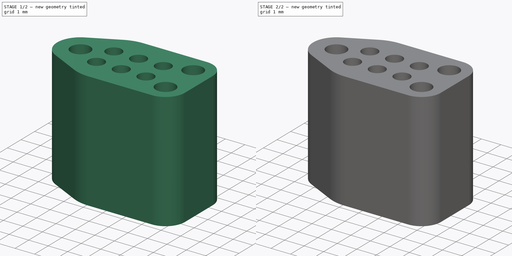
[diagram: build sequence overview — one tinted view per stage of 2, left to right]
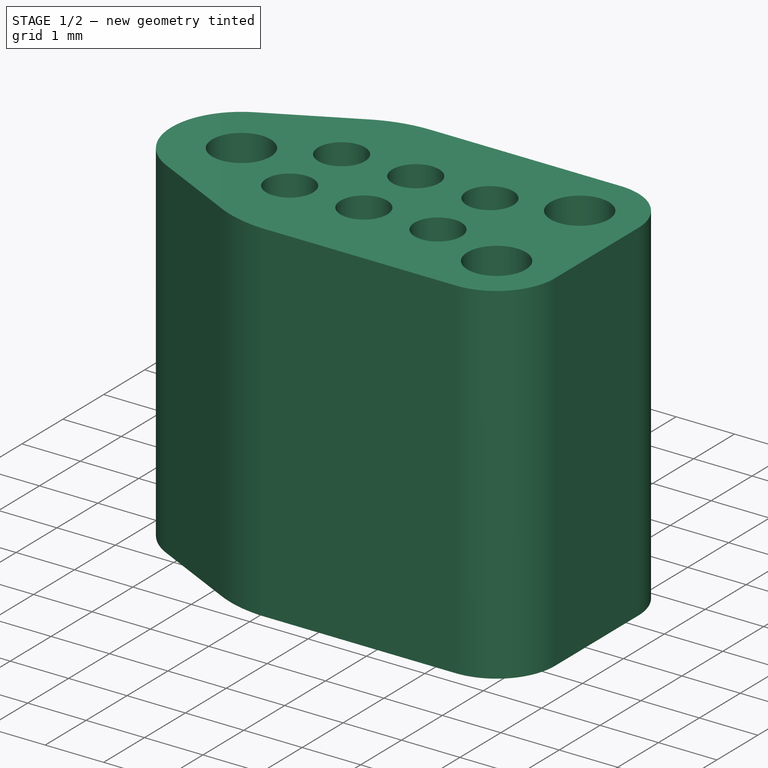
[diagram: stage 1 of 2 — iso view after this stage's code; geometry added in this stage tinted green]
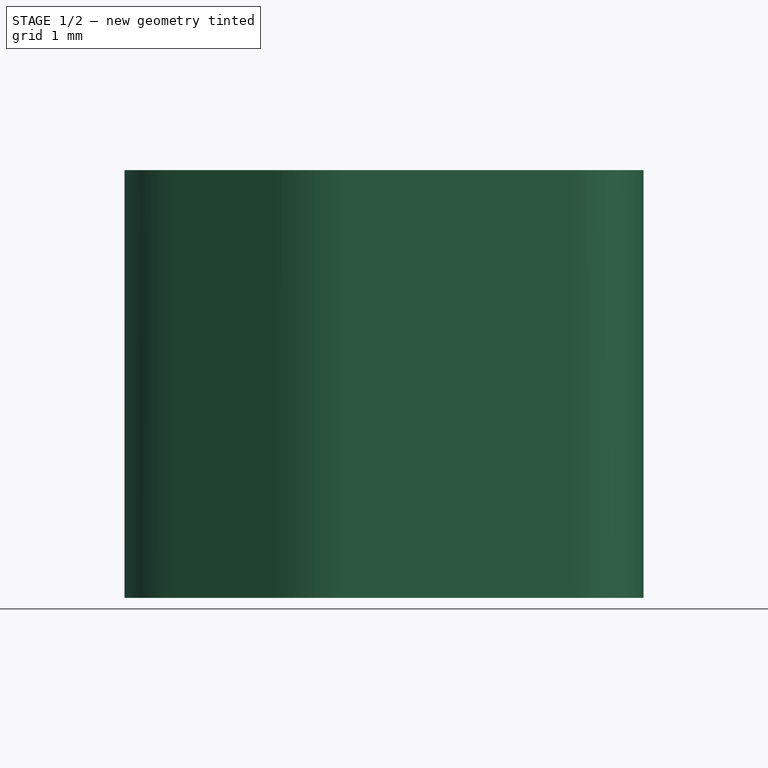
[diagram: stage 1 of 2 — front view after this stage's code; geometry added in this stage tinted green]
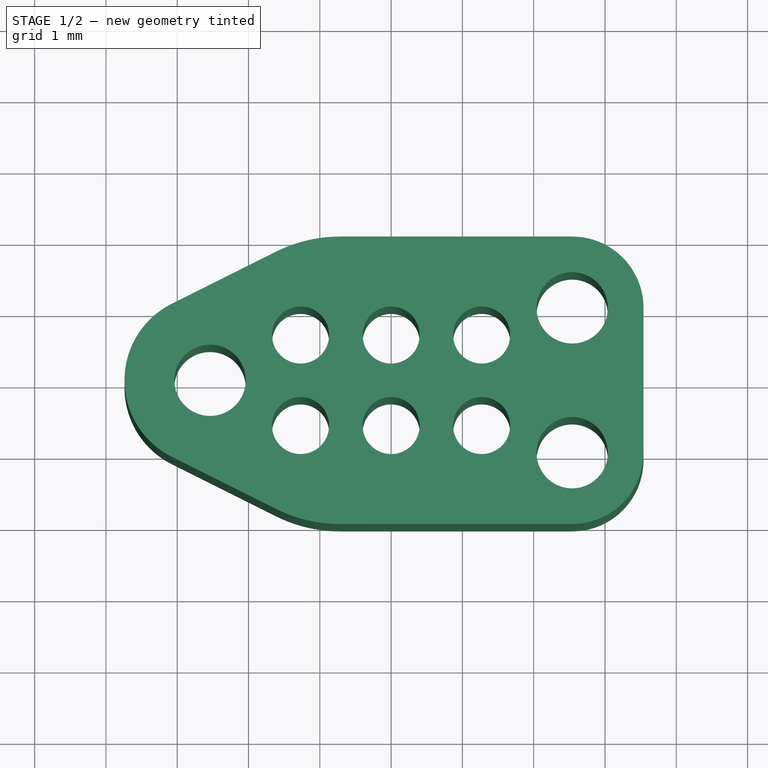
[diagram: stage 1 of 2 — top view after this stage's code; geometry added in this stage tinted green]
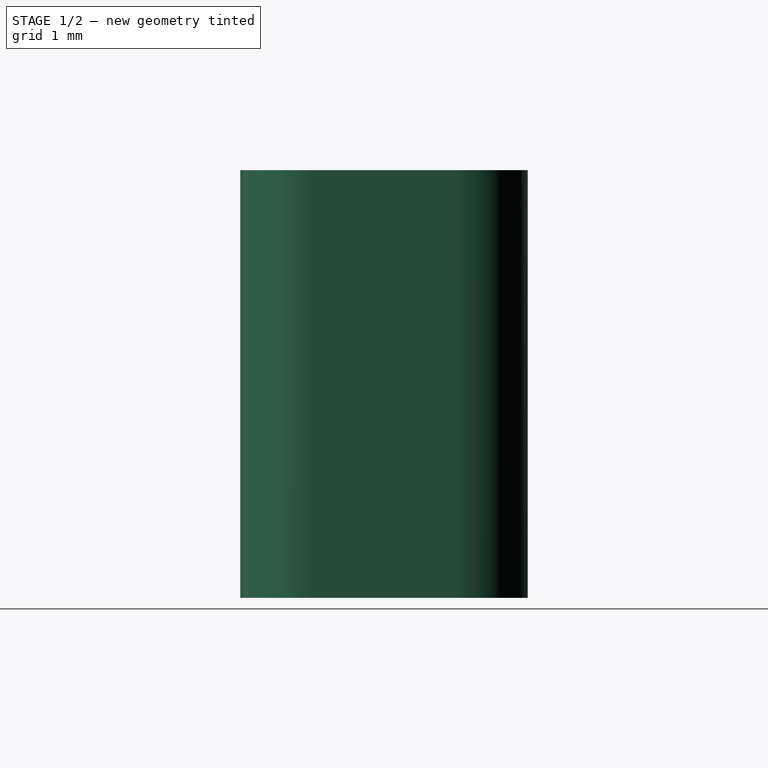
[diagram: stage 1 of 2 — right view after this stage's code; geometry added in this stage tinted green]
FCSTD DOCUMENT  (FreeCAD 0.21R33771 (Git))
Label: tagconnect
License: All rights reserved
LicenseURL: http://en.wikipedia.org/wiki/All_rights_reserved
objects: Sketcher::SketchObject×2, PartDesign::Pad×2, PartDesign::Body×2
note: 8 computed .brp shape members not serialized (recipe doc carries the construction recipe); baked Part::Feature solids carry a one-line shape summary decoded from their .brp

FEATURE [PartDesign::Body] Body
  Group = -> [Sketch,Pad]
  Origin = -> Origin
  Tip = -> Pad
FEATURE [Sketcher::SketchObject] Sketch001
  FullyConstrained = true
  MapMode = 5
  Support = -> [XY_Plane001]
  sketch-geometry (30):
    g0: LineSegment StartX=-1.27 StartY=0.635 StartZ=0 EndX=0 EndY=0.635 EndZ=0
    g1: LineSegment StartX=0 StartY=0.635 StartZ=0 EndX=1.27 EndY=0.635 EndZ=0
    g2: LineSegment StartX=1.27 StartY=0.635 StartZ=0 EndX=1.27 EndY=-0.635 EndZ=0
    g3: LineSegment StartX=1.27 StartY=-0.635 StartZ=0 EndX=0 EndY=-0.635 EndZ=0
    g4: LineSegment StartX=1e-16 StartY=-0.635 StartZ=0 EndX=-1.27 EndY=-0.635 EndZ=0
    g5: LineSegment StartX=-1.27 StartY=-0.635 StartZ=0 EndX=-1.27 EndY=0.635 EndZ=0
    g6: Circle CenterX=-1.27 CenterY=-0.635 CenterZ=0 NormalX=0 NormalY=0 NormalZ=1 AngleXU=0 Radius=0.4
    g7: Circle CenterX=-1.27 CenterY=0.635 CenterZ=0 NormalX=0 NormalY=0 NormalZ=1 AngleXU=0 Radius=0.4
    g8: Circle CenterX=0 CenterY=0.635 CenterZ=0 NormalX=0 NormalY=0 NormalZ=1 AngleXU=0 Radius=0.4
    g9: Circle CenterX=1.27 CenterY=0.635 CenterZ=0 NormalX=0 NormalY=0 NormalZ=1 AngleXU=0 Radius=0.4
    g10: Circle CenterX=1.27 CenterY=-0.635 CenterZ=0 NormalX=0 NormalY=0 NormalZ=1 AngleXU=0 Radius=0.4
    g11: Circle CenterX=1e-16 CenterY=-0.635 CenterZ=0 NormalX=0 NormalY=0 NormalZ=1 AngleXU=0 Radius=0.4
    g12: Circle CenterX=-2.54 CenterY=0 CenterZ=0 NormalX=0 NormalY=0 NormalZ=1 AngleXU=0 Radius=0.5
    g13: Circle CenterX=2.54 CenterY=1.016 CenterZ=0 NormalX=0 NormalY=0 NormalZ=1 AngleXU=0 Radius=0.5
    g14: Circle CenterX=2.54 CenterY=-1.016 CenterZ=0 NormalX=0 NormalY=0 NormalZ=1 AngleXU=0 Radius=0.5
    g15: LineSegment StartX=-2.54 StartY=0 StartZ=0 EndX=-1.27 EndY=0 EndZ=0
    g16: LineSegment StartX=2.54 StartY=1.016 StartZ=0 EndX=2.54 EndY=-1.016 EndZ=0
    g17: LineSegment StartX=1.27 StartY=0 StartZ=0 EndX=2.54 EndY=0 EndZ=0
    g18: ArcOfCircle CenterX=-2.54 CenterY=0 CenterZ=0 NormalX=0 NormalY=0 NormalZ=1 AngleXU=0 Radius=1.2 StartAngle=2.03444 EndAngle=4.24874
    g19: ArcOfCircle CenterX=2.54 CenterY=1.016 CenterZ=0 NormalX=0 NormalY=0 NormalZ=1 AngleXU=0 Radius=1 StartAngle=2e-16 EndAngle=1.5708
    g20: ArcOfCircle CenterX=2.54 CenterY=-1.016 CenterZ=0 NormalX=0 NormalY=0 NormalZ=1 AngleXU=0 Radius=1 StartAngle=4.71239 EndAngle=6.28319
    g21: ArcOfCircle CenterX=-0.719146 CenterY=-0.016 CenterZ=0 NormalX=0 NormalY=0 NormalZ=1 AngleXU=0 Radius=2 StartAngle=4.24874 EndAngle=4.71238
    g22: ArcOfCircle CenterX=-0.719146 CenterY=0.016 CenterZ=0 NormalX=0 NormalY=0 NormalZ=1 AngleXU=0 Radius=2 StartAngle=1.5708 EndAngle=2.03444
    g23: LineSegment StartX=-3.07666 StartY=1.07331 StartZ=0 EndX=-1.61357 EndY=1.80485 EndZ=0
    g24: LineSegment StartX=-0.719146 StartY=2.016 StartZ=0 EndX=2.54 EndY=2.016 EndZ=0
    g25: LineSegment StartX=3.54 StartY=1.016 StartZ=0 EndX=3.54 EndY=-1.016 EndZ=0
    g26: LineSegment StartX=2.54 StartY=-2.016 StartZ=0 EndX=-0.71916 EndY=-2.016 EndZ=0
    g27: LineSegment StartX=-3.07666 StartY=-1.07331 StartZ=0 EndX=-1.61357 EndY=-1.80485 EndZ=0
    g28: LineSegment StartX=-0.719146 StartY=0.016 StartZ=0 EndX=-0.719146 EndY=-0.016 EndZ=0
    g29: Circle CenterX=-1.27 CenterY=0.635 CenterZ=0 NormalX=0 NormalY=0 NormalZ=1 AngleXU=0 Radius=1.2
  constraints (71):
    c: Horizontal(g0)
    c: Coincident(g0,g1)
    c: Horizontal(g1)
    c: Coincident(g1,g2)
    c: Vertical(g2)
    c: Coincident(g2,g3)
    c: Horizontal(g3)
    c: Coincident(g3,g4)
    c: Horizontal(g4)
    c: Coincident(g4,g5)
    c: Coincident(g5,g0)
    c: Equal(g0,g1)
    c: Equal(g1,g2)
    c: Equal(g2,g3)
    c: Equal(g3,g4)
    c: DistanceY(g5,g5) = 1.27
    c: Coincident(g6,g4)
    c: Radius(g6) = 0.4
    c: Coincident(g7,g0)
    c: Coincident(g8,g0)
    c: Coincident(g10,g2)
    c: Coincident(g1,g9)
    c: Coincident(g11,g3)
    c: Equal(g6,g7)
    c: Equal(g7,g8)
    c: Equal(g8,g9)
    c: Equal(g9,g10)
    c: Equal(g10,g11)
    c: Equal(g13,g14)
    c: Coincident(g15,g12)
    c: Horizontal(g15)
    c: Symmetric(g7,g6,g15)
    c: Coincident(g16,g13)
    c: Coincident(g16,g14)
    c: Vertical(g16)
    c: Horizontal(g17)
    c: Symmetric(g13,g14,g17)
    c: Symmetric(g9,g10,g17)
    c: Radius(g12) = 0.5
    c: Equal(g5,g15)
    c: Equal(g15,g17)
    c: DistanceY(g16,g16) = 2.032
    c: DistanceX(g12,g13) = 5.08
    c: Symmetric(g6,g9,g-1)
    c: Coincident(g18,g12)
    c: Coincident(g19,g13)
    c: Coincident(g20,g14)
    c: Equal(g19,g20)
    c: Equal(g21,g22)
    c: Coincident(g26,g21)
    c: Horizontal(g26)
    c: Horizontal(g24)
    c: Coincident(g28,g22)
    c: Coincident(g28,g21)
    c: Symmetric(g21,g22,g15)
    c: Tangent(g22,g24) = 1.5708
    c: Tangent(g19,g24) = 1.5708
    c: Tangent(g19,g25) = 1.5708
    c: Tangent(g20,g25) = 1.5708
    c: Tangent(g21,g27) = -1.5708
    c: Tangent(g18,g27) = -1.5708
    c: Tangent(g18,g23) = 1.5708
    c: Tangent(g22,g23) = 1.5708
    c: Tangent(g20,g26) = 1.5708
    c: Radius(g18) = 1.2
    c: Radius(g22) = 2
    c: Equal(g12,g13)
    c: Coincident(g29,g7)
    c: Equal(g29,g18)
    c: Tangent(g29,g23)
    c: Radius(g19) = 1
FEATURE [PartDesign::Pad] Pad001
  Direction = (0,0,1)
  Length = 6
  Length2 = 10
  Profile = -> Sketch001
  ReferenceAxis = -> Sketch001 [N_Axis]
  Type = 0
FEATURE [PartDesign::Body] Body001
  Group = -> [Sketch001,Pad001]
  Origin = -> Origin001
  Tip = -> Pad001
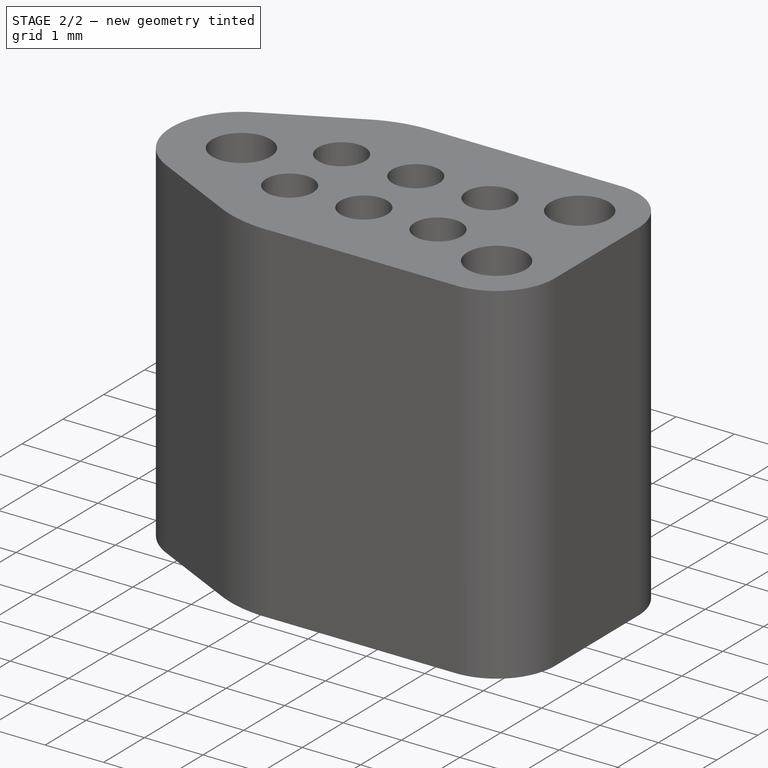
[diagram: stage 2 of 2 — iso view after this stage's code; geometry added in this stage tinted green]
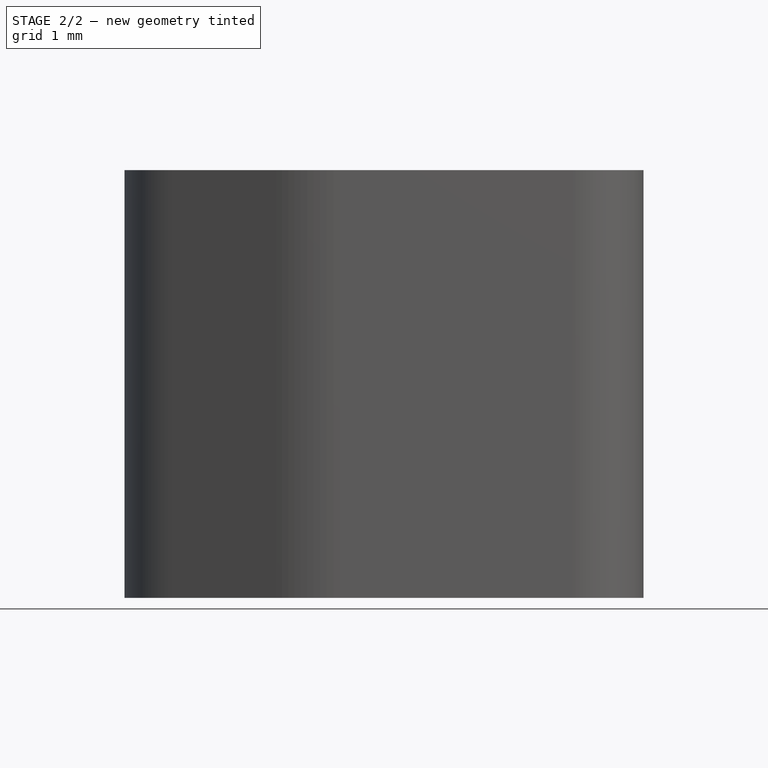
[diagram: stage 2 of 2 — front view after this stage's code; geometry added in this stage tinted green]
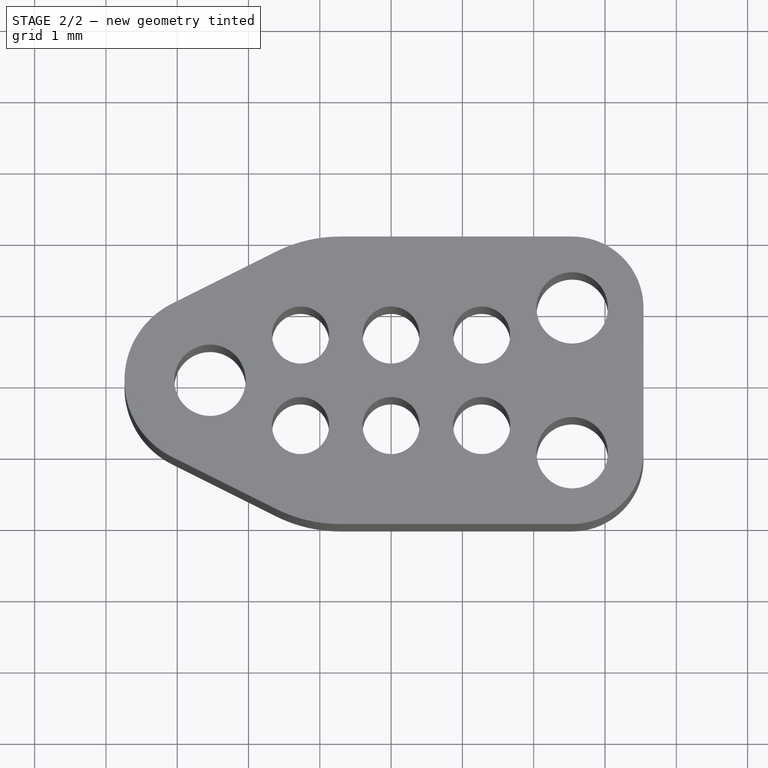
[diagram: stage 2 of 2 — top view after this stage's code; geometry added in this stage tinted green]
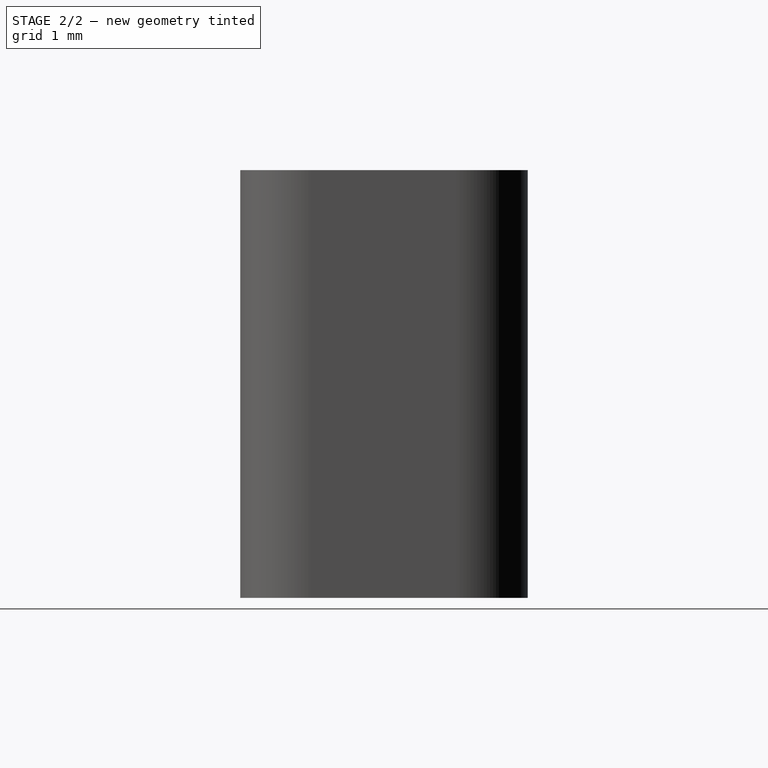
[diagram: stage 2 of 2 — right view after this stage's code; geometry added in this stage tinted green]
FEATURE [Sketcher::SketchObject] Sketch
  FullyConstrained = true
  MapMode = 5
  Support = -> [XY_Plane]
  sketch-geometry (30):
    g0: LineSegment StartX=-1.27 StartY=0.635 StartZ=0 EndX=0 EndY=0.635 EndZ=0
    g1: LineSegment StartX=0 StartY=0.635 StartZ=0 EndX=1.27 EndY=0.635 EndZ=0
    g2: LineSegment StartX=1.27 StartY=0.635 StartZ=0 EndX=1.27 EndY=-0.635 EndZ=0
    g3: LineSegment StartX=1.27 StartY=-0.635 StartZ=0 EndX=0 EndY=-0.635 EndZ=0
    g4: LineSegment StartX=0 StartY=-0.635 StartZ=0 EndX=-1.27 EndY=-0.635 EndZ=0
    g5: LineSegment StartX=-1.27 StartY=-0.635 StartZ=0 EndX=-1.27 EndY=0.635 EndZ=0
    g6: Circle CenterX=-1.27 CenterY=-0.635 CenterZ=0 NormalX=0 NormalY=0 NormalZ=1 AngleXU=0 Radius=0.4
    g7: Circle CenterX=-1.27 CenterY=0.635 CenterZ=0 NormalX=0 NormalY=0 NormalZ=1 AngleXU=0 Radius=0.4
    g8: Circle CenterX=0 CenterY=0.635 CenterZ=0 NormalX=0 NormalY=0 NormalZ=1 AngleXU=0 Radius=0.4
    g9: Circle CenterX=1.27 CenterY=0.635 CenterZ=0 NormalX=0 NormalY=0 NormalZ=1 AngleXU=0 Radius=0.4
    g10: Circle CenterX=1.27 CenterY=-0.635 CenterZ=0 NormalX=0 NormalY=0 NormalZ=1 AngleXU=0 Radius=0.4
    g11: Circle CenterX=0 CenterY=-0.635 CenterZ=0 NormalX=0 NormalY=0 NormalZ=1 AngleXU=0 Radius=0.4
    g12: Circle CenterX=-2.54 CenterY=0 CenterZ=0 NormalX=0 NormalY=0 NormalZ=1 AngleXU=0 Radius=0.5
    g13: Circle CenterX=2.54 CenterY=1.016 CenterZ=0 NormalX=0 NormalY=0 NormalZ=1 AngleXU=0 Radius=0.5
    g14: Circle CenterX=2.54 CenterY=-1.016 CenterZ=0 NormalX=0 NormalY=0 NormalZ=1 AngleXU=0 Radius=0.5
    g15: LineSegment StartX=-2.54 StartY=0 StartZ=0 EndX=-1.27 EndY=0 EndZ=0
    g16: LineSegment StartX=2.54 StartY=1.016 StartZ=0 EndX=2.54 EndY=-1.016 EndZ=0
    g17: LineSegment StartX=1.27 StartY=0 StartZ=0 EndX=2.54 EndY=0 EndZ=0
    g18: ArcOfCircle CenterX=-2.54 CenterY=0 CenterZ=0 NormalX=0 NormalY=0 NormalZ=1 AngleXU=0 Radius=1.1 StartAngle=2.03444 EndAngle=4.24874
    g19: ArcOfCircle CenterX=2.54 CenterY=1.016 CenterZ=0 NormalX=0 NormalY=0 NormalZ=1 AngleXU=0 Radius=0.884 StartAngle=0 EndAngle=1.5708
    g20: ArcOfCircle CenterX=2.54 CenterY=-1.016 CenterZ=0 NormalX=0 NormalY=0 NormalZ=1 AngleXU=0 Radius=0.884 StartAngle=4.71239 EndAngle=6.28319
    g21: ArcOfCircle CenterX=-0.727539 CenterY=0.1 CenterZ=0 NormalX=0 NormalY=0 NormalZ=1 AngleXU=0 Radius=2 StartAngle=4.24874 EndAngle=4.71238
    g22: ArcOfCircle CenterX=-0.727539 CenterY=-0.1 CenterZ=0 NormalX=0 NormalY=0 NormalZ=1 AngleXU=0 Radius=2 StartAngle=1.5708 EndAngle=2.03444
    g23: LineSegment StartX=-3.03193 StartY=0.98387 StartZ=0 EndX=-1.62197 EndY=1.68885 EndZ=0
    g24: LineSegment StartX=-0.727539 StartY=1.9 StartZ=0 EndX=2.54 EndY=1.9 EndZ=0
    g25: LineSegment StartX=3.424 StartY=1.016 StartZ=0 EndX=3.424 EndY=-1.016 EndZ=0
    g26: LineSegment StartX=2.54 StartY=-1.9 StartZ=0 EndX=-0.727556 EndY=-1.9 EndZ=0
    g27: LineSegment StartX=-3.03193 StartY=-0.98387 StartZ=0 EndX=-1.62197 EndY=-1.68885 EndZ=0
    g28: LineSegment StartX=-0.727539 StartY=-0.1 StartZ=0 EndX=-0.727539 EndY=0.1 EndZ=0
    g29: Circle CenterX=-1.27 CenterY=0.635 CenterZ=0 NormalX=0 NormalY=0 NormalZ=1 AngleXU=0 Radius=1.1
  constraints (71):
    c: Horizontal(g0)
    c: Coincident(g0,g1)
    c: Horizontal(g1)
    c: Coincident(g1,g2)
    c: Vertical(g2)
    c: Coincident(g2,g3)
    c: Horizontal(g3)
    c: Coincident(g3,g4)
    c: Horizontal(g4)
    c: Coincident(g4,g5)
    c: Coincident(g5,g0)
    c: Equal(g0,g1)
    c: Equal(g1,g2)
    c: Equal(g2,g3)
    c: Equal(g3,g4)
    c: DistanceY(g5,g5) = 1.27
    c: Coincident(g6,g4)
    c: Radius(g6) = 0.4
    c: Coincident(g7,g0)
    c: Coincident(g8,g0)
    c: Coincident(g10,g2)
    c: Coincident(g1,g9)
    c: Coincident(g11,g3)
    c: Equal(g6,g7)
    c: Equal(g7,g8)
    c: Equal(g8,g9)
    c: Equal(g9,g10)
    c: Equal(g10,g11)
    c: Equal(g13,g14)
    c: Coincident(g15,g12)
    c: Horizontal(g15)
    c: Symmetric(g7,g6,g15)
    c: Coincident(g16,g13)
    c: Coincident(g16,g14)
    c: Vertical(g16)
    c: Horizontal(g17)
    c: Symmetric(g13,g14,g17)
    c: Symmetric(g9,g10,g17)
    c: Radius(g12) = 0.5
    c: Equal(g5,g15)
    c: Equal(g15,g17)
    c: DistanceY(g16,g16) = 2.032
    c: DistanceX(g12,g13) = 5.08
    c: Symmetric(g6,g9,g-1)
    c: Coincident(g18,g12)
    c: Coincident(g19,g13)
    c: Coincident(g20,g14)
    c: Equal(g19,g20)
    c: Equal(g21,g22)
    c: Coincident(g26,g21)
    c: Horizontal(g26)
    c: Horizontal(g24)
    c: Coincident(g28,g22)
    c: Coincident(g28,g21)
    c: Symmetric(g21,g22,g15)
    c: Tangent(g22,g24) = 1.5708
    c: Tangent(g19,g24) = 1.5708
    c: Tangent(g19,g25) = 1.5708
    c: Tangent(g20,g25) = 1.5708
    c: Tangent(g21,g27) = -1.5708
    c: Tangent(g18,g27) = -1.5708
    c: Tangent(g18,g23) = 1.5708
    c: Tangent(g22,g23) = 1.5708
    c: Tangent(g20,g26) = 1.5708
    c: Radius(g18) = 1.1
    c: DistanceY(g20,g19) = 3.8
    c: Radius(g22) = 2
    c: Equal(g12,g13)
    c: Coincident(g29,g7)
    c: Equal(g29,g18)
    c: Tangent(g29,g23)
FEATURE [PartDesign::Pad] Pad
  Direction = (0,0,1)
  Length = 6
  Length2 = 10
  Profile = -> Sketch
  ReferenceAxis = -> Sketch [N_Axis]
  Type = 0
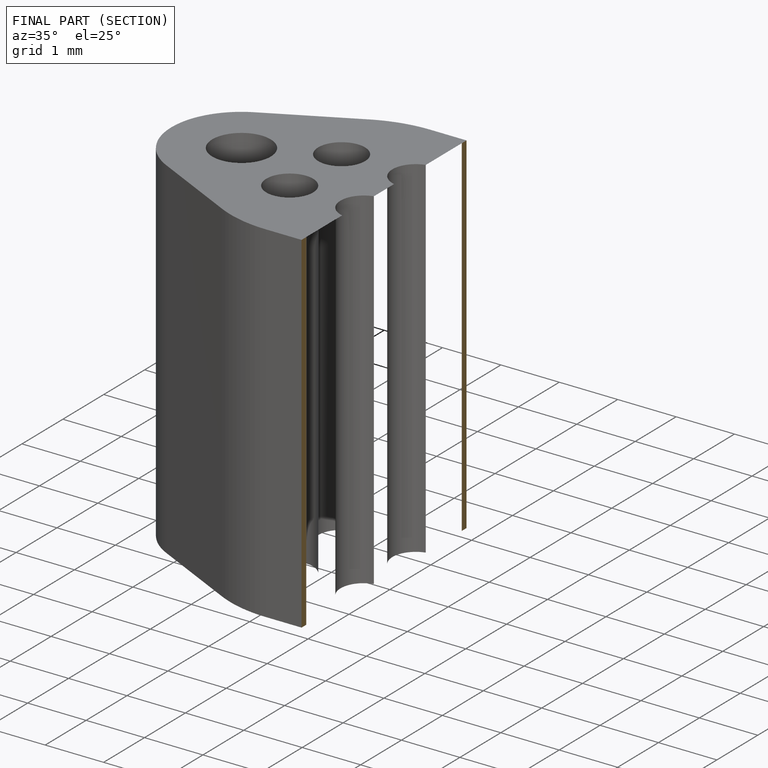
[diagram: finished part — half-section view (interior)]
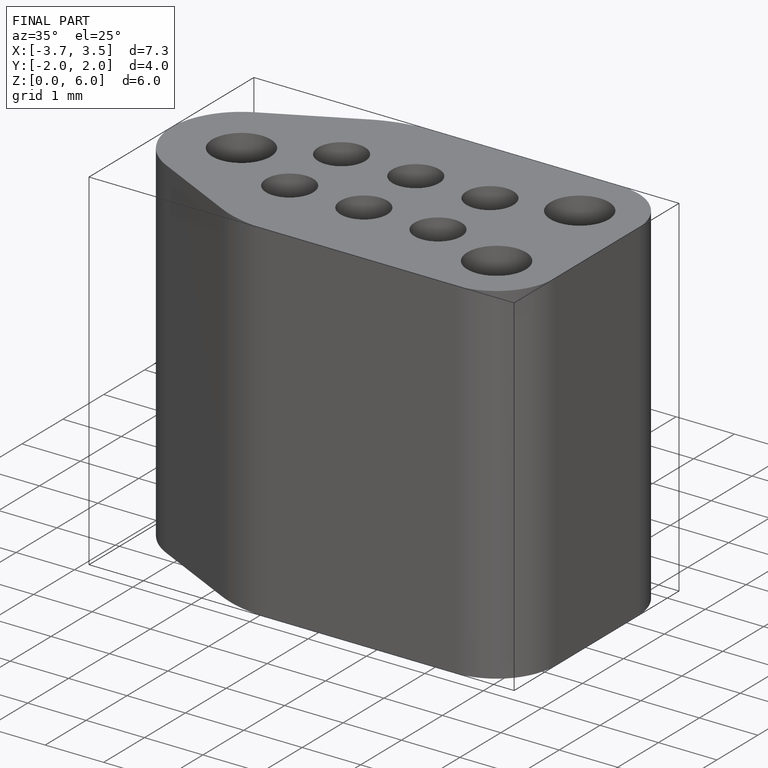
[diagram: finished part — iso view with bounding-box wireframe]
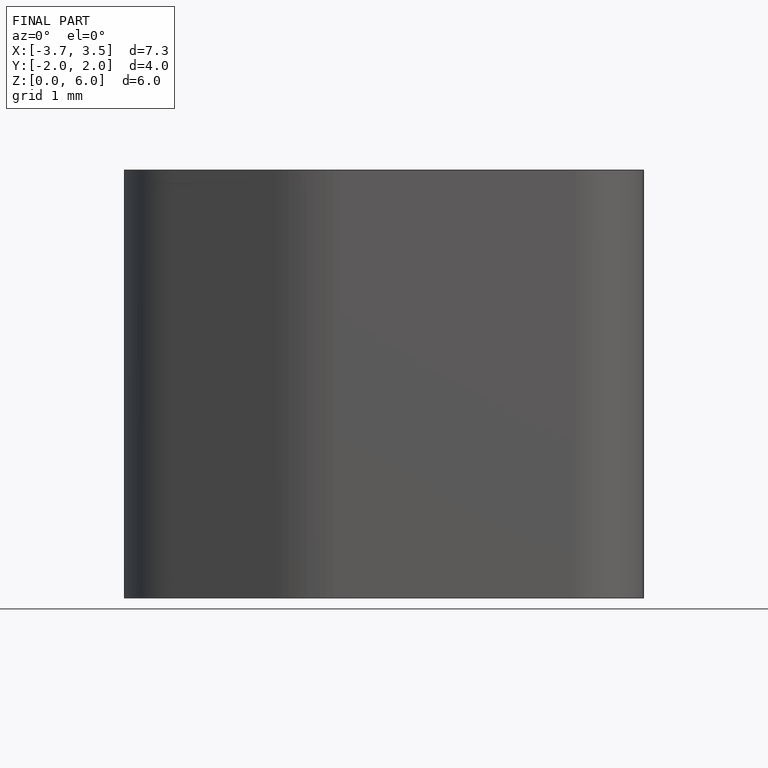
[diagram: finished part — front view with bounding-box wireframe]
